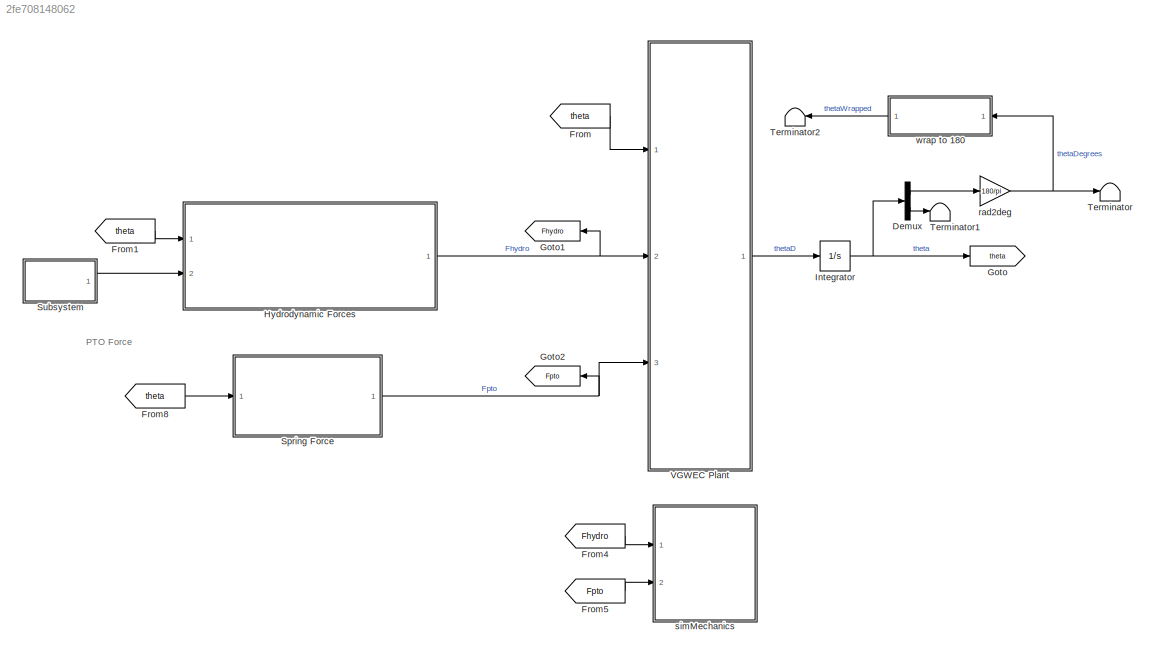
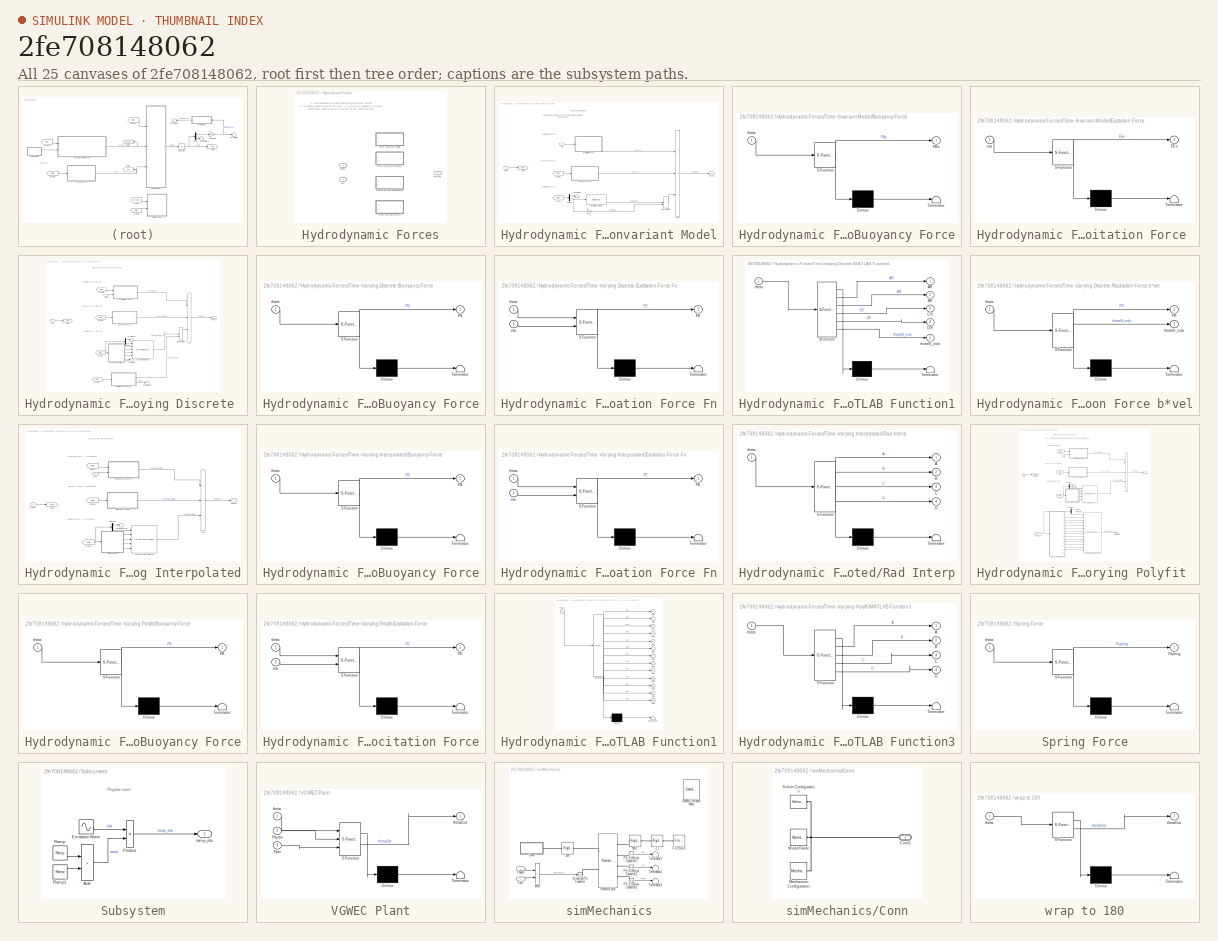
[diagram: thumbnail index - all 25 canvases of the model, root first then tree order]
MODEL slx_2fe708148062
KIND model
CONFIG AbsTol = auto
CONFIG EnableMultiTasking = off
CONFIG FixedStep = dt
CONFIG MaxStep = auto
CONFIG MinStep = auto
CONFIG RelTol = 1e-3
CONFIG SampleTimeConstraint = Unconstrained
CONFIG SolverName = ode3
CONFIG StartTime = 0.0
CONFIG StopTime = tSim
BLOCK [Demux] Demux
  Outputs = 2
  Ports = [1, 2]
BLOCK [From] From
  GotoTag = theta
BLOCK [From] From1
  GotoTag = theta
BLOCK [From] From4
  GotoTag = Fhydro
BLOCK [From] From5
  GotoTag = Fpto
BLOCK [From] From8
  GotoTag = theta
BLOCK [Goto] Goto
  GotoTag = theta
BLOCK [Goto] Goto1
  GotoTag = Fhydro
  NameLocation = top
BLOCK [Goto] Goto2
  GotoTag = Fpto
  NameLocation = top
BLOCK [SubSystem] Hydrodynamic Forces
  Ports = [2, 1]
  RequestExecContextInheritance = off
  Variant = on
BLOCK [Outport] Hydrodynamic Forces/FHydro
BLOCK [SubSystem] Hydrodynamic Forces/Time-Invariant Model
  Ports = [2, 1]
  RequestExecContextInheritance = off
  VariantControl = Time_Variant == 0
BLOCK [Sum] Hydrodynamic Forces/Time-Invariant Model/Add
  IconShape = rectangular
  Inputs = +--
  Ports = [3, 1]
BLOCK [SubSystem] Hydrodynamic Forces/Time-Invariant Model/Buoyancy Force
  ErrorFcn = Stateflow.Translate.translate
  PermitHierarchicalResolution = ExplicitOnly
  Ports = [1, 1]
  RequestExecContextInheritance = off
  SFBlockType = MATLAB Function
  TreatAsAtomicUnit = on
BLOCK [Demux] Hydrodynamic Forces/Time-Invariant Model/Buoyancy Force/ Demux 
  Outputs = 1
  Ports = [1, 1]
BLOCK [S-Function] Hydrodynamic Forces/Time-Invariant Model/Buoyancy Force/ SFunction 
  EnableBusSupport = on
  FunctionName = sf_sfun
  Parameters = hydroCoeff,hydroVCoeff
  PortCounts = [1 2]
  Ports = [1, 2]
  SFcnIsStateOwnerBlock = off
  SFunctionDeploymentMode = off
  Tag = Stateflow S-Function 11
BLOCK [Terminator] Hydrodynamic Forces/Time-Invariant Model/Buoyancy Force/ Terminator 
BLOCK [Outport] Hydrodynamic Forces/Time-Invariant Model/Buoyancy Force/FBs
BLOCK [Inport] Hydrodynamic Forces/Time-Invariant Model/Buoyancy Force/theta
BLOCK [Demux] Hydrodynamic Forces/Time-Invariant Model/Demux
  Outputs = 2
  Ports = [1, 2]
BLOCK [SubSystem] Hydrodynamic Forces/Time-Invariant Model/Excitation Force 
  ErrorFcn = Stateflow.Translate.translate
  PermitHierarchicalResolution = ExplicitOnly
  Ports = [1, 1]
  RequestExecContextInheritance = off
  SFBlockType = MATLAB Function
  TreatAsAtomicUnit = on
BLOCK [Demux] Hydrodynamic Forces/Time-Invariant Model/Excitation Force / Demux 
  Outputs = 1
  Ports = [1, 1]
BLOCK [S-Function] Hydrodynamic Forces/Time-Invariant Model/Excitation Force / SFunction 
  EnableBusSupport = on
  FunctionName = sf_sfun
  Parameters = hydroCoeff,hydroVCoeff,w_Wave
  PortCounts = [1 2]
  Ports = [1, 2]
  SFcnIsStateOwnerBlock = off
  SFunctionDeploymentMode = off
  Tag = Stateflow S-Function 17
BLOCK [Terminator] Hydrodynamic Forces/Time-Invariant Model/Excitation Force / Terminator 
BLOCK [Outport] Hydrodynamic Forces/Time-Invariant Model/Excitation Force /FEs
BLOCK [Inport] Hydrodynamic Forces/Time-Invariant Model/Excitation Force /eta
BLOCK [Outport] Hydrodynamic Forces/Time-Invariant Model/FHydro
BLOCK [From] Hydrodynamic Forces/Time-Invariant Model/From1
  GotoTag = theta
BLOCK [From] Hydrodynamic Forces/Time-Invariant Model/From6
  GotoTag = theta
BLOCK [Goto] Hydrodynamic Forces/Time-Invariant Model/Goto
  GotoTag = theta
BLOCK [ManualSwitch] Hydrodynamic Forces/Time-Invariant Model/Manual Switch
BLOCK [StateSpace] Hydrodynamic Forces/Time-Invariant Model/Rad State-Space
  A = AR3
  B = BR3
  C = CR3
  D = DR3
  InitialCondition = 0
  Ports = [1, 1]
BLOCK [Terminator] Hydrodynamic Forces/Time-Invariant Model/Terminator
BLOCK [Gain] Hydrodynamic Forces/Time-Invariant Model/b
  Gain = hydroVCoeff.KR(w_WaveIndx, hydroCoeff.singleThetaIndex)
BLOCK [Inport] Hydrodynamic Forces/Time-Invariant Model/eta
  Port = 2
BLOCK [Inport] Hydrodynamic Forces/Time-Invariant Model/theta
BLOCK [SubSystem] Hydrodynamic Forces/Time-Varying Discrete 
  Ports = [2, 1]
  RequestExecContextInheritance = off
  VariantControl = Time_Variant == 1
BLOCK [Sum] Hydrodynamic Forces/Time-Varying Discrete /Add
  IconShape = rectangular
  Inputs = +--
  Ports = [3, 1]
BLOCK [SubSystem] Hydrodynamic Forces/Time-Varying Discrete /Buoyancy Force
  ErrorFcn = Stateflow.Translate.translate
  PermitHierarchicalResolution = ExplicitOnly
  Ports = [1, 1]
  RequestExecContextInheritance = off
  SFBlockType = MATLAB Function
  TreatAsAtomicUnit = on
BLOCK [Demux] Hydrodynamic Forces/Time-Varying Discrete /Buoyancy Force/ Demux 
  Outputs = 1
  Ports = [1, 1]
BLOCK [S-Function] Hydrodynamic Forces/Time-Varying Discrete /Buoyancy Force/ SFunction 
  EnableBusSupport = on
  FunctionName = sf_sfun
  Parameters = hydroCoeff,hydroVCoeff
  PortCounts = [1 2]
  Ports = [1, 2]
  SFcnIsStateOwnerBlock = off
  SFunctionDeploymentMode = off
  Tag = Stateflow S-Function 10
BLOCK [Terminator] Hydrodynamic Forces/Time-Varying Discrete /Buoyancy Force/ Terminator 
BLOCK [Outport] Hydrodynamic Forces/Time-Varying Discrete /Buoyancy Force/FB
BLOCK [Inport] Hydrodynamic Forces/Time-Varying Discrete /Buoyancy Force/theta
BLOCK [Demux] Hydrodynamic Forces/Time-Varying Discrete /Demux1
  Outputs = 2
  Ports = [1, 2]
BLOCK [SubSystem] Hydrodynamic Forces/Time-Varying Discrete /Excitation Force Fn
  ErrorFcn = Stateflow.Translate.translate
  PermitHierarchicalResolution = ExplicitOnly
  Ports = [2, 1]
  RequestExecContextInheritance = off
  SFBlockType = MATLAB Function
  TreatAsAtomicUnit = on
BLOCK [Demux] Hydrodynamic Forces/Time-Varying Discrete /Excitation Force Fn/ Demux 
  Outputs = 1
  Ports = [1, 1]
BLOCK [S-Function] Hydrodynamic Forces/Time-Varying Discrete /Excitation Force Fn/ SFunction 
  EnableBusSupport = on
  FunctionName = sf_sfun
  Parameters = hydroCoeff,hydroVCoeff,w_Wave
  PortCounts = [2 2]
  Ports = [2, 2]
  SFcnIsStateOwnerBlock = off
  SFunctionDeploymentMode = off
  Tag = Stateflow S-Function 13
BLOCK [Terminator] Hydrodynamic Forces/Time-Varying Discrete /Excitation Force Fn/ Terminator 
BLOCK [Outport] Hydrodynamic Forces/Time-Varying Discrete /Excitation Force Fn/FE
BLOCK [Inport] Hydrodynamic Forces/Time-Varying Discrete /Excitation Force Fn/eta
  Port = 2
BLOCK [Inport] Hydrodynamic Forces/Time-Varying Discrete /Excitation Force Fn/theta
BLOCK [Outport] Hydrodynamic Forces/Time-Varying Discrete /FHydro
BLOCK [From] Hydrodynamic Forces/Time-Varying Discrete /From1
  GotoTag = theta
BLOCK [From] Hydrodynamic Forces/Time-Varying Discrete /From2
  GotoTag = theta
BLOCK [From] Hydrodynamic Forces/Time-Varying Discrete /From3
  GotoTag = theta
BLOCK [From] Hydrodynamic Forces/Time-Varying Discrete /From6
  GotoTag = theta
BLOCK [Goto] Hydrodynamic Forces/Time-Varying Discrete /Goto
  GotoTag = theta
BLOCK [SubSystem] Hydrodynamic Forces/Time-Varying Discrete /MATLAB Function1
  ErrorFcn = Stateflow.Translate.translate
  PermitHierarchicalResolution = ExplicitOnly
  Ports = [1, 5]
  RequestExecContextInheritance = off
  SFBlockType = MATLAB Function
  TreatAsAtomicUnit = on
BLOCK [Demux] Hydrodynamic Forces/Time-Varying Discrete /MATLAB Function1/ Demux 
  Outputs = 1
  Ports = [1, 1]
BLOCK [S-Function] Hydrodynamic Forces/Time-Varying Discrete /MATLAB Function1/ SFunction 
  EnableBusSupport = on
  FunctionName = sf_sfun
  Parameters = hydroCoeff,tfRadAR_ROm,tfRadBR_ROm,tfRadCR_ROm,tfRadDR_ROm
  PortCounts = [1 6]
  Ports = [1, 6]
  SFcnIsStateOwnerBlock = off
  SFunctionDeploymentMode = off
  Tag = Stateflow S-Function 14
BLOCK [Terminator] Hydrodynamic Forces/Time-Varying Discrete /MATLAB Function1/ Terminator 
BLOCK [Outport] Hydrodynamic Forces/Time-Varying Discrete /MATLAB Function1/AR
BLOCK [Outport] Hydrodynamic Forces/Time-Varying Discrete /MATLAB Function1/BR
  Port = 2
BLOCK [Outport] Hydrodynamic Forces/Time-Varying Discrete /MATLAB Function1/CR
  Port = 3
BLOCK [Outport] Hydrodynamic Forces/Time-Varying Discrete /MATLAB Function1/DR
  Port = 4
BLOCK [Inport] Hydrodynamic Forces/Time-Varying Discrete /MATLAB Function1/theta
BLOCK [Outport] Hydrodynamic Forces/Time-Varying Discrete /MATLAB Function1/thetaN_indx
  Port = 5
BLOCK [ManualSwitch] Hydrodynamic Forces/Time-Varying Discrete /Manual Switch
BLOCK [SubSystem] Hydrodynamic Forces/Time-Varying Discrete /Radiation Force b*vel
  ErrorFcn = Stateflow.Translate.translate
  PermitHierarchicalResolution = ExplicitOnly
  Ports = [1, 2]
  RequestExecContextInheritance = off
  SFBlockType = MATLAB Function
  TreatAsAtomicUnit = on
BLOCK [Demux] Hydrodynamic Forces/Time-Varying Discrete /Radiation Force b*vel/ Demux 
  Outputs = 1
  Ports = [1, 1]
BLOCK [S-Function] Hydrodynamic Forces/Time-Varying Discrete /Radiation Force b*vel/ SFunction 
  EnableBusSupport = on
  FunctionName = sf_sfun
  Parameters = hydroCoeff,hydroVCoeff,w_WaveIndx
  PortCounts = [1 3]
  Ports = [1, 3]
  SFcnIsStateOwnerBlock = off
  SFunctionDeploymentMode = off
  Tag = Stateflow S-Function 16
BLOCK [Terminator] Hydrodynamic Forces/Time-Varying Discrete /Radiation Force b*vel/ Terminator 
BLOCK [Outport] Hydrodynamic Forces/Time-Varying Discrete /Radiation Force b*vel/FR
BLOCK [Inport] Hydrodynamic Forces/Time-Varying Discrete /Radiation Force b*vel/theta
BLOCK [Outport] Hydrodynamic Forces/Time-Varying Discrete /Radiation Force b*vel/thetaN_indx
  Port = 2
BLOCK [Terminator] Hydrodynamic Forces/Time-Varying Discrete /Terminator1
BLOCK [Terminator] Hydrodynamic Forces/Time-Varying Discrete /Terminator2
BLOCK [Terminator] Hydrodynamic Forces/Time-Varying Discrete /Terminator3
BLOCK [Reference] Hydrodynamic Forces/Time-Varying Discrete /Varying State Space  REF=cstblocks/Linear Parameter Varying/Varying State Space
  Ports = [5, 1]
  SourceBlock = cstblocks/Linear Parameter Varying/Varying State Space
  SourceProductBaseCode = CT
  SourceType = Varying State Space
BLOCK [Inport] Hydrodynamic Forces/Time-Varying Discrete /eta
  Port = 2
BLOCK [Inport] Hydrodynamic Forces/Time-Varying Discrete /theta
BLOCK [SubSystem] Hydrodynamic Forces/Time-Varying Interpolated
  Ports = [2, 1]
  RequestExecContextInheritance = off
  VariantControl = Time_Variant == 2
BLOCK [Sum] Hydrodynamic Forces/Time-Varying Interpolated/Add
  IconShape = rectangular
  Inputs = +--
  Ports = [3, 1]
BLOCK [SubSystem] Hydrodynamic Forces/Time-Varying Interpolated/Buoyancy Force
  ErrorFcn = Stateflow.Translate.translate
  PermitHierarchicalResolution = ExplicitOnly
  Ports = [1, 1]
  RequestExecContextInheritance = off
  SFBlockType = MATLAB Function
  TreatAsAtomicUnit = on
BLOCK [Demux] Hydrodynamic Forces/Time-Varying Interpolated/Buoyancy Force/ Demux 
  Outputs = 1
  Ports = [1, 1]
BLOCK [S-Function] Hydrodynamic Forces/Time-Varying Interpolated/Buoyancy Force/ SFunction 
  EnableBusSupport = on
  FunctionName = sf_sfun
  Parameters = hydroCoeff,hydroVCoeff
  PortCounts = [1 2]
  Ports = [1, 2]
  SFcnIsStateOwnerBlock = off
  SFunctionDeploymentMode = off
  Tag = Stateflow S-Function 4
BLOCK [Terminator] Hydrodynamic Forces/Time-Varying Interpolated/Buoyancy Force/ Terminator 
BLOCK [Outport] Hydrodynamic Forces/Time-Varying Interpolated/Buoyancy Force/FB
BLOCK [Inport] Hydrodynamic Forces/Time-Varying Interpolated/Buoyancy Force/theta
BLOCK [Demux] Hydrodynamic Forces/Time-Varying Interpolated/Demux4
  Outputs = 2
  Ports = [1, 2]
BLOCK [SubSystem] Hydrodynamic Forces/Time-Varying Interpolated/Excitation Force Fn
  ErrorFcn = Stateflow.Translate.translate
  PermitHierarchicalResolution = ExplicitOnly
  Ports = [2, 1]
  RequestExecContextInheritance = off
  SFBlockType = MATLAB Function
  TreatAsAtomicUnit = on
BLOCK [Demux] Hydrodynamic Forces/Time-Varying Interpolated/Excitation Force Fn/ Demux 
  Outputs = 1
  Ports = [1, 1]
BLOCK [S-Function] Hydrodynamic Forces/Time-Varying Interpolated/Excitation Force Fn/ SFunction 
  EnableBusSupport = on
  FunctionName = sf_sfun
  Parameters = hydroCoeff,hydroVCoeff,w_Wave
  PortCounts = [2 2]
  Ports = [2, 2]
  SFcnIsStateOwnerBlock = off
  SFunctionDeploymentMode = off
  Tag = Stateflow S-Function 5
BLOCK [Terminator] Hydrodynamic Forces/Time-Varying Interpolated/Excitation Force Fn/ Terminator 
BLOCK [Outport] Hydrodynamic Forces/Time-Varying Interpolated/Excitation Force Fn/FE
BLOCK [Inport] Hydrodynamic Forces/Time-Varying Interpolated/Excitation Force Fn/eta
  Port = 2
BLOCK [Inport] Hydrodynamic Forces/Time-Varying Interpolated/Excitation Force Fn/theta
BLOCK [Outport] Hydrodynamic Forces/Time-Varying Interpolated/FHydro
BLOCK [From] Hydrodynamic Forces/Time-Varying Interpolated/From1
  GotoTag = theta
BLOCK [From] Hydrodynamic Forces/Time-Varying Interpolated/From2
  GotoTag = theta
BLOCK [From] Hydrodynamic Forces/Time-Varying Interpolated/From6
  GotoTag = theta
BLOCK [Goto] Hydrodynamic Forces/Time-Varying Interpolated/Goto
  GotoTag = theta
BLOCK [SubSystem] Hydrodynamic Forces/Time-Varying Interpolated/Rad Interp
  ErrorFcn = Stateflow.Translate.translate
  PermitHierarchicalResolution = ExplicitOnly
  Ports = [1, 4]
  RequestExecContextInheritance = off
  SFBlockType = MATLAB Function
  TreatAsAtomicUnit = on
BLOCK [Demux] Hydrodynamic Forces/Time-Varying Interpolated/Rad Interp/ Demux 
  Outputs = 1
  Ports = [1, 1]
BLOCK [S-Function] Hydrodynamic Forces/Time-Varying Interpolated/Rad Interp/ SFunction 
  EnableBusSupport = on
  FunctionName = sf_sfun
  Parameters = aRInterp,bRInterp,hydroCoeff
  PortCounts = [1 5]
  Ports = [1, 5]
  SFcnIsStateOwnerBlock = off
  SFunctionDeploymentMode = off
  Tag = Stateflow S-Function 6
BLOCK [Terminator] Hydrodynamic Forces/Time-Varying Interpolated/Rad Interp/ Terminator 
BLOCK [Outport] Hydrodynamic Forces/Time-Varying Interpolated/Rad Interp/A
BLOCK [Outport] Hydrodynamic Forces/Time-Varying Interpolated/Rad Interp/B
  Port = 2
BLOCK [Outport] Hydrodynamic Forces/Time-Varying Interpolated/Rad Interp/C
  Port = 3
BLOCK [Outport] Hydrodynamic Forces/Time-Varying Interpolated/Rad Interp/D
  Port = 4
BLOCK [Inport] Hydrodynamic Forces/Time-Varying Interpolated/Rad Interp/theta
BLOCK [Terminator] Hydrodynamic Forces/Time-Varying Interpolated/Terminator8
BLOCK [Reference] Hydrodynamic Forces/Time-Varying Interpolated/Varying State Space2  REF=cstblocks/Linear Parameter Varying/Varying State Space
  Ports = [5, 1]
  SourceBlock = cstblocks/Linear Parameter Varying/Varying State Space
  SourceProductBaseCode = CT
  SourceType = Varying State Space
BLOCK [Inport] Hydrodynamic Forces/Time-Varying Interpolated/eta
  Port = 2
BLOCK [Inport] Hydrodynamic Forces/Time-Varying Interpolated/theta
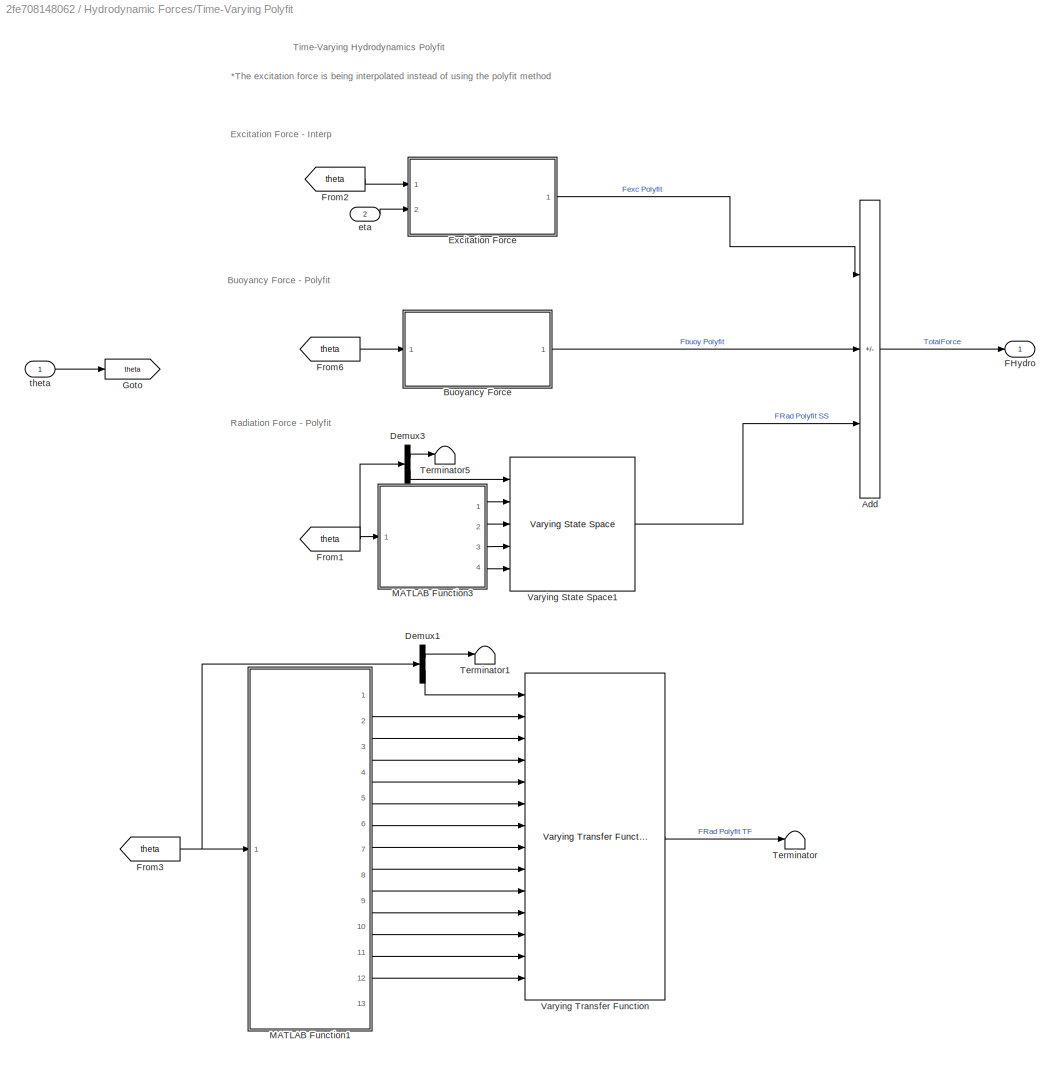
BLOCK [SubSystem] Hydrodynamic Forces/Time-Varying Polyfit 
  Ports = [2, 1]
  RequestExecContextInheritance = off
  VariantControl = Time_Variant == 3
BLOCK [Sum] Hydrodynamic Forces/Time-Varying Polyfit /Add
  IconShape = rectangular
  Inputs = +--
  Ports = [3, 1]
BLOCK [SubSystem] Hydrodynamic Forces/Time-Varying Polyfit /Buoyancy Force
  ErrorFcn = Stateflow.Translate.translate
  PermitHierarchicalResolution = ExplicitOnly
  Ports = [1, 1]
  RequestExecContextInheritance = off
  SFBlockType = MATLAB Function
  TreatAsAtomicUnit = on
BLOCK [Demux] Hydrodynamic Forces/Time-Varying Polyfit /Buoyancy Force/ Demux 
  Outputs = 1
  Ports = [1, 1]
BLOCK [S-Function] Hydrodynamic Forces/Time-Varying Polyfit /Buoyancy Force/ SFunction 
  EnableBusSupport = on
  FunctionName = sf_sfun
  Parameters = hydroVCoeff
  PortCounts = [1 2]
  Ports = [1, 2]
  SFcnIsStateOwnerBlock = off
  SFunctionDeploymentMode = off
  Tag = Stateflow S-Function 8
BLOCK [Terminator] Hydrodynamic Forces/Time-Varying Polyfit /Buoyancy Force/ Terminator 
BLOCK [Outport] Hydrodynamic Forces/Time-Varying Polyfit /Buoyancy Force/FB
BLOCK [Inport] Hydrodynamic Forces/Time-Varying Polyfit /Buoyancy Force/theta
BLOCK [Demux] Hydrodynamic Forces/Time-Varying Polyfit /Demux1
  Commented = on
  Outputs = 2
  Ports = [1, 2]
BLOCK [Demux] Hydrodynamic Forces/Time-Varying Polyfit /Demux3
  Outputs = 2
  Ports = [1, 2]
BLOCK [SubSystem] Hydrodynamic Forces/Time-Varying Polyfit /Excitation Force
  ErrorFcn = Stateflow.Translate.translate
  PermitHierarchicalResolution = ExplicitOnly
  Ports = [2, 1]
  RequestExecContextInheritance = off
  SFBlockType = MATLAB Function
  TreatAsAtomicUnit = on
BLOCK [Demux] Hydrodynamic Forces/Time-Varying Polyfit /Excitation Force/ Demux 
  Outputs = 1
  Ports = [1, 1]
BLOCK [S-Function] Hydrodynamic Forces/Time-Varying Polyfit /Excitation Force/ SFunction 
  EnableBusSupport = on
  FunctionName = sf_sfun
  Parameters = hydroCoeff,hydroVCoeff,w_Wave
  PortCounts = [2 2]
  Ports = [2, 2]
  SFcnIsStateOwnerBlock = off
  SFunctionDeploymentMode = off
  Tag = Stateflow S-Function 9
BLOCK [Terminator] Hydrodynamic Forces/Time-Varying Polyfit /Excitation Force/ Terminator 
BLOCK [Outport] Hydrodynamic Forces/Time-Varying Polyfit /Excitation Force/FE
BLOCK [Inport] Hydrodynamic Forces/Time-Varying Polyfit /Excitation Force/eta
  Port = 2
BLOCK [Inport] Hydrodynamic Forces/Time-Varying Polyfit /Excitation Force/theta
BLOCK [Outport] Hydrodynamic Forces/Time-Varying Polyfit /FHydro
BLOCK [From] Hydrodynamic Forces/Time-Varying Polyfit /From1
  GotoTag = theta
BLOCK [From] Hydrodynamic Forces/Time-Varying Polyfit /From2
  GotoTag = theta
BLOCK [From] Hydrodynamic Forces/Time-Varying Polyfit /From3
  Commented = on
  GotoTag = theta
BLOCK [From] Hydrodynamic Forces/Time-Varying Polyfit /From6
  GotoTag = theta
BLOCK [Goto] Hydrodynamic Forces/Time-Varying Polyfit /Goto
  GotoTag = theta
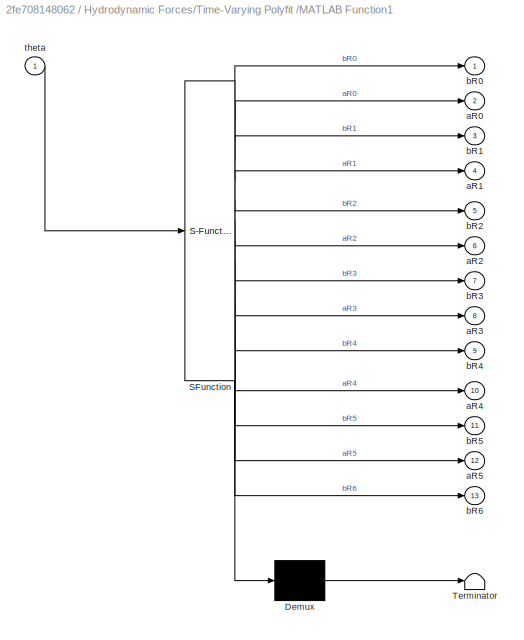
BLOCK [SubSystem] Hydrodynamic Forces/Time-Varying Polyfit /MATLAB Function1
  Commented = on
  ErrorFcn = Stateflow.Translate.translate
  PermitHierarchicalResolution = ExplicitOnly
  Ports = [1, 13]
  RequestExecContextInheritance = off
  SFBlockType = MATLAB Function
  TreatAsAtomicUnit = on
BLOCK [Demux] Hydrodynamic Forces/Time-Varying Polyfit /MATLAB Function1/ Demux 
  Outputs = 1
  Ports = [1, 1]
BLOCK [S-Function] Hydrodynamic Forces/Time-Varying Polyfit /MATLAB Function1/ SFunction 
  EnableBusSupport = on
  FunctionName = sf_sfun
  Parameters = hydroVCoeff
  PortCounts = [1 14]
  Ports = [1, 14]
  SFcnIsStateOwnerBlock = off
  SFunctionDeploymentMode = off
  Tag = Stateflow S-Function 3
BLOCK [Terminator] Hydrodynamic Forces/Time-Varying Polyfit /MATLAB Function1/ Terminator 
BLOCK [Outport] Hydrodynamic Forces/Time-Varying Polyfit /MATLAB Function1/aR0
  Port = 2
BLOCK [Outport] Hydrodynamic Forces/Time-Varying Polyfit /MATLAB Function1/aR1
  Port = 4
BLOCK [Outport] Hydrodynamic Forces/Time-Varying Polyfit /MATLAB Function1/aR2
  Port = 6
BLOCK [Outport] Hydrodynamic Forces/Time-Varying Polyfit /MATLAB Function1/aR3
  Port = 8
BLOCK [Outport] Hydrodynamic Forces/Time-Varying Polyfit /MATLAB Function1/aR4
  Port = 10
BLOCK [Outport] Hydrodynamic Forces/Time-Varying Polyfit /MATLAB Function1/aR5
  Port = 12
BLOCK [Outport] Hydrodynamic Forces/Time-Varying Polyfit /MATLAB Function1/bR0
BLOCK [Outport] Hydrodynamic Forces/Time-Varying Polyfit /MATLAB Function1/bR1
  Port = 3
BLOCK [Outport] Hydrodynamic Forces/Time-Varying Polyfit /MATLAB Function1/bR2
  Port = 5
BLOCK [Outport] Hydrodynamic Forces/Time-Varying Polyfit /MATLAB Function1/bR3
  Port = 7
BLOCK [Outport] Hydrodynamic Forces/Time-Varying Polyfit /MATLAB Function1/bR4
  Port = 9
BLOCK [Outport] Hydrodynamic Forces/Time-Varying Polyfit /MATLAB Function1/bR5
  Port = 11
BLOCK [Outport] Hydrodynamic Forces/Time-Varying Polyfit /MATLAB Function1/bR6
  Port = 13
BLOCK [Inport] Hydrodynamic Forces/Time-Varying Polyfit /MATLAB Function1/theta
BLOCK [SubSystem] Hydrodynamic Forces/Time-Varying Polyfit /MATLAB Function3
  ErrorFcn = Stateflow.Translate.translate
  PermitHierarchicalResolution = ExplicitOnly
  Ports = [1, 4]
  RequestExecContextInheritance = off
  SFBlockType = MATLAB Function
  TreatAsAtomicUnit = on
BLOCK [Demux] Hydrodynamic Forces/Time-Varying Polyfit /MATLAB Function3/ Demux 
  Outputs = 1
  Ports = [1, 1]
BLOCK [S-Function] Hydrodynamic Forces/Time-Varying Polyfit /MATLAB Function3/ SFunction 
  EnableBusSupport = on
  FunctionName = sf_sfun
  Parameters = hydroVCoeff
  PortCounts = [1 5]
  Ports = [1, 5]
  SFcnIsStateOwnerBlock = off
  SFunctionDeploymentMode = off
  Tag = Stateflow S-Function 7
BLOCK [Terminator] Hydrodynamic Forces/Time-Varying Polyfit /MATLAB Function3/ Terminator 
BLOCK [Outport] Hydrodynamic Forces/Time-Varying Polyfit /MATLAB Function3/A
BLOCK [Outport] Hydrodynamic Forces/Time-Varying Polyfit /MATLAB Function3/B
  Port = 2
BLOCK [Outport] Hydrodynamic Forces/Time-Varying Polyfit /MATLAB Function3/C
  Port = 3
BLOCK [Outport] Hydrodynamic Forces/Time-Varying Polyfit /MATLAB Function3/D
  Port = 4
BLOCK [Inport] Hydrodynamic Forces/Time-Varying Polyfit /MATLAB Function3/theta
BLOCK [Terminator] Hydrodynamic Forces/Time-Varying Polyfit /Terminator
  Commented = on
BLOCK [Terminator] Hydrodynamic Forces/Time-Varying Polyfit /Terminator1
  Commented = on
BLOCK [Terminator] Hydrodynamic Forces/Time-Varying Polyfit /Terminator5
BLOCK [Reference] Hydrodynamic Forces/Time-Varying Polyfit /Varying State Space1  REF=cstblocks/Linear Parameter Varying/Varying State Space
  Ports = [5, 1]
  SourceBlock = cstblocks/Linear Parameter Varying/Varying State Space
  SourceProductBaseCode = CT
  SourceType = Varying State Space
BLOCK [Reference] Hydrodynamic Forces/Time-Varying Polyfit /Varying Transfer Function  REF=cstblocks/Linear Parameter Varying/Varying Transfer Function
  Commented = on
  Ports = [14, 1]
  SourceBlock = cstblocks/Linear Parameter Varying/Varying Transfer Function
  SourceProductBaseCode = CT
  SourceType = Varying Transfer Function
BLOCK [Inport] Hydrodynamic Forces/Time-Varying Polyfit /eta
  Port = 2
BLOCK [Inport] Hydrodynamic Forces/Time-Varying Polyfit /theta
BLOCK [Inport] Hydrodynamic Forces/eta
  Port = 2
BLOCK [Inport] Hydrodynamic Forces/theta
BLOCK [Integrator] Integrator
  InitialCondition = theta0
  Ports = [1, 1]
BLOCK [SubSystem] Spring Force
  ErrorFcn = Stateflow.Translate.translate
  PermitHierarchicalResolution = ExplicitOnly
  Ports = [1, 1]
  RequestExecContextInheritance = off
  SFBlockType = MATLAB Function
  TreatAsAtomicUnit = on
BLOCK [Demux] Spring Force/ Demux 
  Outputs = 1
  Ports = [1, 1]
BLOCK [S-Function] Spring Force/ SFunction 
  EnableBusSupport = on
  FunctionName = sf_sfun
  Parameters = hydroCoeff
  PortCounts = [1 2]
  Ports = [1, 2]
  SFcnIsStateOwnerBlock = off
  SFunctionDeploymentMode = off
  Tag = Stateflow S-Function 15
BLOCK [Terminator] Spring Force/ Terminator 
BLOCK [Outport] Spring Force/Fspring
BLOCK [Inport] Spring Force/theta
BLOCK [SubSystem] Subsystem
  Ports = [0, 1]
  RequestExecContextInheritance = off
BLOCK [Sum] Subsystem/Add
  IconShape = rectangular
  Ports = [2, 1]
BLOCK [Sin] Subsystem/Excitation Wave
  Amplitude = amp_Wave
  Frequency = w_Wave
  Ports = [0, 1]
  SampleTime = 0
BLOCK [Product] Subsystem/Product
  Ports = [2, 1]
BLOCK [Reference] Subsystem/Ramp  REF=simulink/Sources/Ramp
  Ports = [0, 1]
  SourceBlock = simulink/Sources/Ramp
  SourceProductBaseCode = SL
  SourceType = Ramp
BLOCK [Reference] Subsystem/Ramp1  REF=simulink/Sources/Ramp
  Ports = [0, 1]
  SourceBlock = simulink/Sources/Ramp
  SourceProductBaseCode = SL
  SourceType = Ramp
BLOCK [Outport] Subsystem/ramp_eta
BLOCK [Terminator] Terminator
BLOCK [Terminator] Terminator1
BLOCK [Terminator] Terminator2
  Commented = on
  NameLocation = top
BLOCK [SubSystem] VGWEC Plant
  ErrorFcn = Stateflow.Translate.translate
  PermitHierarchicalResolution = ExplicitOnly
  Ports = [3, 1]
  RequestExecContextInheritance = off
  SFBlockType = MATLAB Function
  TreatAsAtomicUnit = on
BLOCK [Demux] VGWEC Plant/ Demux 
  Outputs = 1
  Ports = [1, 1]
BLOCK [S-Function] VGWEC Plant/ SFunction 
  EnableBusSupport = on
  FunctionName = sf_sfun
  Parameters = Time_Variant,hydroCoeff,hydroVCoeff
  PortCounts = [3 2]
  Ports = [3, 2]
  SFcnIsStateOwnerBlock = off
  SFunctionDeploymentMode = off
  Tag = Stateflow S-Function 2
BLOCK [Terminator] VGWEC Plant/ Terminator 
BLOCK [Inport] VGWEC Plant/Fhydro
  Port = 2
BLOCK [Inport] VGWEC Plant/Fpto
  Port = 3
BLOCK [Inport] VGWEC Plant/theta
BLOCK [Outport] VGWEC Plant/thetaDot
BLOCK [Gain] rad2deg
  Gain = 180/pi
BLOCK [SubSystem] simMechanics
  Ports = [2]
  RequestExecContextInheritance = off
BLOCK [Reference] simMechanics/-Z1  REF=sm_lib/Frames and
Transforms/Rigid
Transform
  Ports = [0, 0, 0, 0, 0, 1, 1]
  SourceBlock = sm_lib/Frames and\nTransforms/Rigid\nTransform
  SourceProductBaseCode = MS
  SourceType = Rigid\nTransform
BLOCK [Reference] simMechanics/90X  REF=sm_lib/Frames and
Transforms/Rigid
Transform
  Ports = [0, 0, 0, 0, 0, 1, 1]
  SourceBlock = sm_lib/Frames and\nTransforms/Rigid\nTransform
  SourceProductBaseCode = MS
  SourceType = Rigid\nTransform
BLOCK [Reference] simMechanics/90X1  REF=sm_lib/Frames and
Transforms/Rigid
Transform
  Ports = [0, 0, 0, 0, 0, 1, 1]
  SourceBlock = sm_lib/Frames and\nTransforms/Rigid\nTransform
  SourceProductBaseCode = MS
  SourceType = Rigid\nTransform
BLOCK [Sum] simMechanics/Add
  IconShape = rectangular
  Inputs = +-
  Ports = [2, 1]
BLOCK [SubSystem] simMechanics/Conn
  Ports = [0, 0, 0, 0, 0, 0, 1]
  RequestExecContextInheritance = off
BLOCK [PMIOPort] simMechanics/Conn/Conn1
  Side = Right
BLOCK [Reference] simMechanics/Conn/Mechanism Configuration  REF=sm_lib/Utilities/Mechanism
Configuration
  Ports = [0, 0, 0, 0, 0, 0, 1]
  SourceBlock = sm_lib/Utilities/Mechanism\nConfiguration
  SourceProductBaseCode = MS
  SourceType = Mechanism\nConfiguration
BLOCK [Reference] simMechanics/Conn/Solver Configuration  REF=nesl_utility/Solver
Configuration
  Ports = [0, 0, 0, 0, 0, 0, 1]
  SourceBlock = nesl_utility/Solver\nConfiguration
  SourceProductBaseCode = SS,PW,VE
  SourceType = Solver\nConfiguration
BLOCK [Reference] simMechanics/Conn/World Frame  REF=sm_lib/Frames and
Transforms/World Frame
  Ports = [0, 0, 0, 0, 0, 0, 1]
  SourceBlock = sm_lib/Frames and\nTransforms/World Frame
  SourceProductBaseCode = MS
  SourceType = World Frame
BLOCK [Inport] simMechanics/Fhydro
BLOCK [Reference] simMechanics/File Solid  REF=sm_lib/Body Elements/File Solid
  NameLocation = top
  Ports = [0, 0, 0, 0, 0, 0, 1]
  SourceBlock = sm_lib/Body Elements/File Solid
  SourceProductBaseCode = MS
  SourceType = File Solid
BLOCK [Inport] simMechanics/Fpto
  Port = 2
BLOCK [Reference] simMechanics/General Variable Mass  REF=sm_lib/Body Elements/Variable Mass/General
Variable Mass
  Commented = on
  Ports = [0, 0, 0, 0, 0, 1, 1]
  SourceBlock = sm_lib/Body Elements/Variable Mass/General\nVariable Mass
  SourceProductBaseCode = MS
  SourceType = General\nVariable Mass
BLOCK [Reference] simMechanics/PS-Simulink Converter1  REF=nesl_utility/PS-Simulink
Converter
  Ports = [0, 1, 0, 0, 0, 1]
  SourceBlock = nesl_utility/PS-Simulink\nConverter
  SourceProductBaseCode = SS,PW,VE
  SourceType = PS-Simulink\nConverter
BLOCK [Reference] simMechanics/PS-Simulink Converter2  REF=nesl_utility/PS-Simulink
Converter
  Ports = [0, 1, 0, 0, 0, 1]
  SourceBlock = nesl_utility/PS-Simulink\nConverter
  SourceProductBaseCode = SS,PW,VE
  SourceType = PS-Simulink\nConverter
BLOCK [Reference] simMechanics/PS-Simulink Converter3  REF=nesl_utility/PS-Simulink
Converter
  Ports = [0, 1, 0, 0, 0, 1]
  SourceBlock = nesl_utility/PS-Simulink\nConverter
  SourceProductBaseCode = SS,PW,VE
  SourceType = PS-Simulink\nConverter
BLOCK [Reference] simMechanics/Revolute Joint  REF=sm_lib/Joints/Revolute Joint
  Ports = [0, 0, 0, 0, 0, 2, 4]
  SourceBlock = sm_lib/Joints/Revolute Joint
  SourceProductBaseCode = MS
  SourceType = Revolute Joint
BLOCK [Reference] simMechanics/Simulink-PS Converter  REF=nesl_utility/Simulink-PS
Converter
  Ports = [1, 0, 0, 0, 0, 0, 1]
  SourceBlock = nesl_utility/Simulink-PS\nConverter
  SourceProductBaseCode = SS,PW,VE
  SourceType = Simulink-PS\nConverter
BLOCK [Terminator] simMechanics/Terminator1
BLOCK [Terminator] simMechanics/Terminator2
BLOCK [Terminator] simMechanics/Terminator3
BLOCK [SubSystem] wrap to 180
  Commented = on
  ErrorFcn = Stateflow.Translate.translate
  NameLocation = top
  PermitHierarchicalResolution = ExplicitOnly
  Ports = [1, 1]
  RequestExecContextInheritance = off
  SFBlockType = MATLAB Function
  TreatAsAtomicUnit = on
BLOCK [Demux] wrap to 180/ Demux 
  Outputs = 1
  Ports = [1, 1]
BLOCK [S-Function] wrap to 180/ SFunction 
  EnableBusSupport = on
  FunctionName = sf_sfun
  PortCounts = [1 2]
  Ports = [1, 2]
  SFcnIsStateOwnerBlock = off
  SFunctionDeploymentMode = off
  Tag = Stateflow S-Function 1
BLOCK [Terminator] wrap to 180/ Terminator 
BLOCK [Inport] wrap to 180/theta
BLOCK [Outport] wrap to 180/thetaOut
ANNOTATION (root): PTO Force
ANNOTATION Hydrodynamic Forces: 1) Add Subsystem or Model blocks as valid variant choices. 2) You cannot connect blocks at this level. At simulation, connectivity is automatically determined, based on the active variant and port name matching.
ANNOTATION Hydrodynamic Forces/Time-Invariant Model: Time-Invariante Model
ANNOTATION Hydrodynamic Forces/Time-Invariant Model: This model assumes the hydrodynamics of a fully closed flap at $\zeta = 0^\circ$
ANNOTATION Hydrodynamic Forces/Time-Invariant Model: Buoyancy Force LTI
ANNOTATION Hydrodynamic Forces/Time-Invariant Model: Excitation Force LTI
ANNOTATION Hydrodynamic Forces/Time-Invariant Model: Radiation Force LTI
ANNOTATION Hydrodynamic Forces/Time-Varying Discrete : Time-Varying Hydrodynamics - Discrete
ANNOTATION Hydrodynamic Forces/Time-Varying Discrete : Buoyancy Force - Discrete
ANNOTATION Hydrodynamic Forces/Time-Varying Discrete : Excitation Force - Discrete
ANNOTATION Hydrodynamic Forces/Time-Varying Discrete : Radiation Force - Discrete
ANNOTATION Hydrodynamic Forces/Time-Varying Interpolated: Time-Varying Hydrodynamics
ANNOTATION Hydrodynamic Forces/Time-Varying Interpolated: Buoyancy Force - Interpolated
ANNOTATION Hydrodynamic Forces/Time-Varying Interpolated: Excitation Force - Interpolated
ANNOTATION Hydrodynamic Forces/Time-Varying Interpolated: Radiation Force - Interpolated
ANNOTATION Hydrodynamic Forces/Time-Varying Polyfit : *The excitation force is being interpolated instead of using the polyfit method
ANNOTATION Hydrodynamic Forces/Time-Varying Polyfit : Time-Varying Hydrodynamics Polyfit
ANNOTATION Hydrodynamic Forces/Time-Varying Polyfit : Buoyancy Force - Polyfit
ANNOTATION Hydrodynamic Forces/Time-Varying Polyfit : Excitation Force - Interp
ANNOTATION Hydrodynamic Forces/Time-Varying Polyfit : Radiation Force - Polyfit
ANNOTATION Subsystem: Regular wave
LINE Demux:1 -> rad2deg:1
LINE Demux:2 -> Terminator1:1
LINE From1:1 -> Hydrodynamic Forces:1
LINE From4:1 -> simMechanics:1
LINE From5:1 -> simMechanics:2
LINE From8:1 -> Spring Force:1
LINE From:1 -> VGWEC Plant:1
LINE Hydrodynamic Forces/Time-Invariant Model/Add:1 -> Hydrodynamic Forces/Time-Invariant Model/FHydro:1
LINE Hydrodynamic Forces/Time-Invariant Model/Buoyancy Force:1 -> Hydrodynamic Forces/Time-Invariant Model/Add:2
LINE Hydrodynamic Forces/Time-Invariant Model/Demux:1 -> Hydrodynamic Forces/Time-Invariant Model/Terminator:1
NET Hydrodynamic Forces/Time-Invariant Model/Demux:2 -> Hydrodynamic Forces/Time-Invariant Model/Rad State-Space:1, Hydrodynamic Forces/Time-Invariant Model/b:1
LINE Hydrodynamic Forces/Time-Invariant Model/Excitation Force :1 -> Hydrodynamic Forces/Time-Invariant Model/Add:1
LINE Hydrodynamic Forces/Time-Invariant Model/From1:1 -> Hydrodynamic Forces/Time-Invariant Model/Demux:1
LINE Hydrodynamic Forces/Time-Invariant Model/From6:1 -> Hydrodynamic Forces/Time-Invariant Model/Buoyancy Force:1
LINE Hydrodynamic Forces/Time-Invariant Model/Manual Switch:1 -> Hydrodynamic Forces/Time-Invariant Model/Add:3
LINE Hydrodynamic Forces/Time-Invariant Model/Rad State-Space:1 -> Hydrodynamic Forces/Time-Invariant Model/Manual Switch:1
LINE Hydrodynamic Forces/Time-Invariant Model/b:1 -> Hydrodynamic Forces/Time-Invariant Model/Manual Switch:2
LINE Hydrodynamic Forces/Time-Invariant Model/eta:1 -> Hydrodynamic Forces/Time-Invariant Model/Excitation Force :1
LINE Hydrodynamic Forces/Time-Invariant Model/theta:1 -> Hydrodynamic Forces/Time-Invariant Model/Goto:1
LINE Hydrodynamic Forces/Time-Varying Discrete /Add:1 -> Hydrodynamic Forces/Time-Varying Discrete /FHydro:1
LINE Hydrodynamic Forces/Time-Varying Discrete /Buoyancy Force:1 -> Hydrodynamic Forces/Time-Varying Discrete /Add:2
LINE Hydrodynamic Forces/Time-Varying Discrete /Demux1:1 -> Hydrodynamic Forces/Time-Varying Discrete /Terminator2:1
LINE Hydrodynamic Forces/Time-Varying Discrete /Demux1:2 -> Hydrodynamic Forces/Time-Varying Discrete /Varying State Space:1
LINE Hydrodynamic Forces/Time-Varying Discrete /Excitation Force Fn:1 -> Hydrodynamic Forces/Time-Varying Discrete /Add:1
NET Hydrodynamic Forces/Time-Varying Discrete /From1:1 -> Hydrodynamic Forces/Time-Varying Discrete /Demux1:1, Hydrodynamic Forces/Time-Varying Discrete /MATLAB Function1:1
LINE Hydrodynamic Forces/Time-Varying Discrete /From2:1 -> Hydrodynamic Forces/Time-Varying Discrete /Excitation Force Fn:1
LINE Hydrodynamic Forces/Time-Varying Discrete /From3:1 -> Hydrodynamic Forces/Time-Varying Discrete /Radiation Force b*vel:1
LINE Hydrodynamic Forces/Time-Varying Discrete /From6:1 -> Hydrodynamic Forces/Time-Varying Discrete /Buoyancy Force:1
LINE Hydrodynamic Forces/Time-Varying Discrete /MATLAB Function1:1 -> Hydrodynamic Forces/Time-Varying Discrete /Varying State Space:2
LINE Hydrodynamic Forces/Time-Varying Discrete /MATLAB Function1:2 -> Hydrodynamic Forces/Time-Varying Discrete /Varying State Space:3
LINE Hydrodynamic Forces/Time-Varying Discrete /MATLAB Function1:3 -> Hydrodynamic Forces/Time-Varying Discrete /Varying State Space:4
LINE Hydrodynamic Forces/Time-Varying Discrete /MATLAB Function1:4 -> Hydrodynamic Forces/Time-Varying Discrete /Varying State Space:5
LINE Hydrodynamic Forces/Time-Varying Discrete /MATLAB Function1:5 -> Hydrodynamic Forces/Time-Varying Discrete /Terminator3:1
LINE Hydrodynamic Forces/Time-Varying Discrete /Manual Switch:1 -> Hydrodynamic Forces/Time-Varying Discrete /Add:3
LINE Hydrodynamic Forces/Time-Varying Discrete /Radiation Force b*vel:1 -> Hydrodynamic Forces/Time-Varying Discrete /Manual Switch:2
LINE Hydrodynamic Forces/Time-Varying Discrete /Radiation Force b*vel:2 -> Hydrodynamic Forces/Time-Varying Discrete /Terminator1:1
LINE Hydrodynamic Forces/Time-Varying Discrete /Varying State Space:1 -> Hydrodynamic Forces/Time-Varying Discrete /Manual Switch:1
LINE Hydrodynamic Forces/Time-Varying Discrete /eta:1 -> Hydrodynamic Forces/Time-Varying Discrete /Excitation Force Fn:2
LINE Hydrodynamic Forces/Time-Varying Discrete /theta:1 -> Hydrodynamic Forces/Time-Varying Discrete /Goto:1
LINE Hydrodynamic Forces/Time-Varying Interpolated/Add:1 -> Hydrodynamic Forces/Time-Varying Interpolated/FHydro:1
LINE Hydrodynamic Forces/Time-Varying Interpolated/Buoyancy Force:1 -> Hydrodynamic Forces/Time-Varying Interpolated/Add:2
LINE Hydrodynamic Forces/Time-Varying Interpolated/Demux4:1 -> Hydrodynamic Forces/Time-Varying Interpolated/Terminator8:1
LINE Hydrodynamic Forces/Time-Varying Interpolated/Demux4:2 -> Hydrodynamic Forces/Time-Varying Interpolated/Varying State Space2:1
LINE Hydrodynamic Forces/Time-Varying Interpolated/Excitation Force Fn:1 -> Hydrodynamic Forces/Time-Varying Interpolated/Add:1
NET Hydrodynamic Forces/Time-Varying Interpolated/From1:1 -> Hydrodynamic Forces/Time-Varying Interpolated/Demux4:1, Hydrodynamic Forces/Time-Varying Interpolated/Rad Interp:1
LINE Hydrodynamic Forces/Time-Varying Interpolated/From2:1 -> Hydrodynamic Forces/Time-Varying Interpolated/Excitation Force Fn:1
LINE Hydrodynamic Forces/Time-Varying Interpolated/From6:1 -> Hydrodynamic Forces/Time-Varying Interpolated/Buoyancy Force:1
LINE Hydrodynamic Forces/Time-Varying Interpolated/Rad Interp:1 -> Hydrodynamic Forces/Time-Varying Interpolated/Varying State Space2:2
LINE Hydrodynamic Forces/Time-Varying Interpolated/Rad Interp:2 -> Hydrodynamic Forces/Time-Varying Interpolated/Varying State Space2:3
LINE Hydrodynamic Forces/Time-Varying Interpolated/Rad Interp:3 -> Hydrodynamic Forces/Time-Varying Interpolated/Varying State Space2:4
LINE Hydrodynamic Forces/Time-Varying Interpolated/Rad Interp:4 -> Hydrodynamic Forces/Time-Varying Interpolated/Varying State Space2:5
LINE Hydrodynamic Forces/Time-Varying Interpolated/Varying State Space2:1 -> Hydrodynamic Forces/Time-Varying Interpolated/Add:3
LINE Hydrodynamic Forces/Time-Varying Interpolated/eta:1 -> Hydrodynamic Forces/Time-Varying Interpolated/Excitation Force Fn:2
LINE Hydrodynamic Forces/Time-Varying Interpolated/theta:1 -> Hydrodynamic Forces/Time-Varying Interpolated/Goto:1
LINE Hydrodynamic Forces/Time-Varying Polyfit /Add:1 -> Hydrodynamic Forces/Time-Varying Polyfit /FHydro:1
LINE Hydrodynamic Forces/Time-Varying Polyfit /Buoyancy Force:1 -> Hydrodynamic Forces/Time-Varying Polyfit /Add:2
LINE Hydrodynamic Forces/Time-Varying Polyfit /Demux1:1 -> Hydrodynamic Forces/Time-Varying Polyfit /Terminator1:1
LINE Hydrodynamic Forces/Time-Varying Polyfit /Demux1:2 -> Hydrodynamic Forces/Time-Varying Polyfit /Varying Transfer Function:1
LINE Hydrodynamic Forces/Time-Varying Polyfit /Demux3:1 -> Hydrodynamic Forces/Time-Varying Polyfit /Terminator5:1
LINE Hydrodynamic Forces/Time-Varying Polyfit /Demux3:2 -> Hydrodynamic Forces/Time-Varying Polyfit /Varying State Space1:1
LINE Hydrodynamic Forces/Time-Varying Polyfit /Excitation Force:1 -> Hydrodynamic Forces/Time-Varying Polyfit /Add:1
NET Hydrodynamic Forces/Time-Varying Polyfit /From1:1 -> Hydrodynamic Forces/Time-Varying Polyfit /Demux3:1, Hydrodynamic Forces/Time-Varying Polyfit /MATLAB Function3:1
LINE Hydrodynamic Forces/Time-Varying Polyfit /From2:1 -> Hydrodynamic Forces/Time-Varying Polyfit /Excitation Force:1
NET Hydrodynamic Forces/Time-Varying Polyfit /From3:1 -> Hydrodynamic Forces/Time-Varying Polyfit /Demux1:1, Hydrodynamic Forces/Time-Varying Polyfit /MATLAB Function1:1
LINE Hydrodynamic Forces/Time-Varying Polyfit /From6:1 -> Hydrodynamic Forces/Time-Varying Polyfit /Buoyancy Force:1
LINE Hydrodynamic Forces/Time-Varying Polyfit /MATLAB Function1:1 -> Hydrodynamic Forces/Time-Varying Polyfit /Varying Transfer Function:2
LINE Hydrodynamic Forces/Time-Varying Polyfit /MATLAB Function1:10 -> Hydrodynamic Forces/Time-Varying Polyfit /Varying Transfer Function:11
LINE Hydrodynamic Forces/Time-Varying Polyfit /MATLAB Function1:11 -> Hydrodynamic Forces/Time-Varying Polyfit /Varying Transfer Function:12
LINE Hydrodynamic Forces/Time-Varying Polyfit /MATLAB Function1:12 -> Hydrodynamic Forces/Time-Varying Polyfit /Varying Transfer Function:13
LINE Hydrodynamic Forces/Time-Varying Polyfit /MATLAB Function1:13 -> Hydrodynamic Forces/Time-Varying Polyfit /Varying Transfer Function:14
LINE Hydrodynamic Forces/Time-Varying Polyfit /MATLAB Function1:2 -> Hydrodynamic Forces/Time-Varying Polyfit /Varying Transfer Function:3
LINE Hydrodynamic Forces/Time-Varying Polyfit /MATLAB Function1:3 -> Hydrodynamic Forces/Time-Varying Polyfit /Varying Transfer Function:4
LINE Hydrodynamic Forces/Time-Varying Polyfit /MATLAB Function1:4 -> Hydrodynamic Forces/Time-Varying Polyfit /Varying Transfer Function:5
LINE Hydrodynamic Forces/Time-Varying Polyfit /MATLAB Function1:5 -> Hydrodynamic Forces/Time-Varying Polyfit /Varying Transfer Function:6
LINE Hydrodynamic Forces/Time-Varying Polyfit /MATLAB Function1:6 -> Hydrodynamic Forces/Time-Varying Polyfit /Varying Transfer Function:7
LINE Hydrodynamic Forces/Time-Varying Polyfit /MATLAB Function1:7 -> Hydrodynamic Forces/Time-Varying Polyfit /Varying Transfer Function:8
LINE Hydrodynamic Forces/Time-Varying Polyfit /MATLAB Function1:8 -> Hydrodynamic Forces/Time-Varying Polyfit /Varying Transfer Function:9
LINE Hydrodynamic Forces/Time-Varying Polyfit /MATLAB Function1:9 -> Hydrodynamic Forces/Time-Varying Polyfit /Varying Transfer Function:10
LINE Hydrodynamic Forces/Time-Varying Polyfit /MATLAB Function3:1 -> Hydrodynamic Forces/Time-Varying Polyfit /Varying State Space1:2
LINE Hydrodynamic Forces/Time-Varying Polyfit /MATLAB Function3:2 -> Hydrodynamic Forces/Time-Varying Polyfit /Varying State Space1:3
LINE Hydrodynamic Forces/Time-Varying Polyfit /MATLAB Function3:3 -> Hydrodynamic Forces/Time-Varying Polyfit /Varying State Space1:4
LINE Hydrodynamic Forces/Time-Varying Polyfit /MATLAB Function3:4 -> Hydrodynamic Forces/Time-Varying Polyfit /Varying State Space1:5
LINE Hydrodynamic Forces/Time-Varying Polyfit /Varying State Space1:1 -> Hydrodynamic Forces/Time-Varying Polyfit /Add:3
LINE Hydrodynamic Forces/Time-Varying Polyfit /Varying Transfer Function:1 -> Hydrodynamic Forces/Time-Varying Polyfit /Terminator:1
LINE Hydrodynamic Forces/Time-Varying Polyfit /eta:1 -> Hydrodynamic Forces/Time-Varying Polyfit /Excitation Force:2
LINE Hydrodynamic Forces/Time-Varying Polyfit /theta:1 -> Hydrodynamic Forces/Time-Varying Polyfit /Goto:1
NET Hydrodynamic Forces:1 -> Goto1:1, VGWEC Plant:2
NET Integrator:1 -> Demux:1, Goto:1
NET Spring Force:1 -> Goto2:1, VGWEC Plant:3
LINE Subsystem/Add:1 -> Subsystem/Product:2
LINE Subsystem/Excitation Wave:1 -> Subsystem/Product:1
LINE Subsystem/Product:1 -> Subsystem/ramp_eta:1
LINE Subsystem/Ramp1:1 -> Subsystem/Add:2
LINE Subsystem/Ramp:1 -> Subsystem/Add:1
LINE Subsystem:1 -> Hydrodynamic Forces:2
LINE VGWEC Plant:1 -> Integrator:1
NET rad2deg:1 -> Terminator:1, wrap to 180:1
LINE simMechanics/Add:1 -> simMechanics/Simulink-PS Converter:1
LINE simMechanics/Fhydro:1 -> simMechanics/Add:1
LINE simMechanics/Fpto:1 -> simMechanics/Add:2
LINE simMechanics/PS-Simulink Converter1:1 -> simMechanics/Terminator1:1
LINE simMechanics/PS-Simulink Converter2:1 -> simMechanics/Terminator2:1
LINE simMechanics/PS-Simulink Converter3:1 -> simMechanics/Terminator3:1
LINE wrap to 180:1 -> Terminator2:1
PLINE simMechanics/-Z1:LConn1 -- simMechanics/90X1:RConn1
PLINE simMechanics/-Z1:RConn1 -- simMechanics/File Solid:RConn1
PLINE simMechanics/90X1:LConn1 -- simMechanics/Revolute Joint:RConn1
PLINE simMechanics/90X:LConn1 -- simMechanics/Conn:RConn1
PLINE simMechanics/90X:RConn1 -- simMechanics/Revolute Joint:LConn1
PNET net1: simMechanics/Conn/Conn1:RConn1 -- simMechanics/Conn/Mechanism Configuration:RConn1 -- simMechanics/Conn/Solver Configuration:RConn1 -- simMechanics/Conn/World Frame:RConn1
PLINE simMechanics/PS-Simulink Converter1:LConn1 -- simMechanics/Revolute Joint:RConn2
PLINE simMechanics/PS-Simulink Converter2:LConn1 -- simMechanics/Revolute Joint:RConn3
PLINE simMechanics/PS-Simulink Converter3:LConn1 -- simMechanics/Revolute Joint:RConn4
PLINE simMechanics/Revolute Joint:LConn2 -- simMechanics/Simulink-PS Converter:RConn1
note: NET lines group one-source signal fan-out (src -> all destinations, sorted); 1:1 wires keep LINE; PNET lines group multi-terminal physical nets as a canonical sorted terminal list (undirected conserving connections); 2-terminal nets keep the pairwise PLINE form
CHART Hydrodynamic Forces/Time-Varying Polyfit /MATLAB Function3 states=1 transitions=1
  STATE_LABEL 'eML_blk_kernel()'
  STATE_LABEL 'SCRIPT:\nfunction [A,B,C,D] = RadTFCoeffs(theta, hydroVCoeff)\n% This function extracts the coefficients of the Radiation Transfer\n% Function based on previously fitted data between discretized thetas. \n\n% Inputs: \n% theta0      = current states condition\n% hydrovCoeff = time-variable hydrodynamic coefficients\n% thetaN      = pitch angle index\n\n% Outputs: \n% bR    = numerator \n% aR    = denominator ...<+1729ch>'
CHART Hydrodynamic Forces/Time-Varying Polyfit /Buoyancy Force states=1 transitions=1
  STATE_LABEL 'eML_blk_kernel()'
  STATE_LABEL 'SCRIPT:\nfunction FB = fBuoy(theta, hydroVCoeff)\n\n% States: \ntheta1  = theta(1); % (1) theta:  pitch angle response\n% theta2  = theta(2); % (2) thetaD: pitch angle velocity\n\ntheta1 = wrapToPi(theta1); \ntheta1D = rad2deg(theta1); \n% Find the index for the discretized theta \nif abs(theta1D) >= 95\n    theta1D = 180 - abs(theta1D);\nend \n\nc  = zeros(1,1); \nc  = polyval(hydroVCoeff.cFit, abs(theta1D),[],...<+147ch>'
CHART Hydrodynamic Forces/Time-Varying Polyfit /Excitation Force states=1 transitions=1
  STATE_LABEL 'eML_blk_kernel()'
  STATE_LABEL "SCRIPT:\nfunction FE= fE(theta,eta,hydroCoeff, hydroVCoeff, w_Wave)\n% This function generates the linear excitation force\n\n% Inputs: \n% theta       = current states condition\n% eta         = wave excitation (m)\n% w_Wave      = wave excitation angular frequency 'Omega' (rad/s)\n% hydroCoeff  = time-invariable hydrodynamic coefficients\n% hydrovCoeff = time-variable hydrodynamic coefficients\n\n\n% Output...<+485ch>"
CHART Hydrodynamic Forces/Time-Varying Discrete /Buoyancy Force states=1 transitions=1
  STATE_LABEL 'eML_blk_kernel()'
  STATE_LABEL 'SCRIPT:\nfunction FB = fBuoy(theta,hydroCoeff, hydroVCoeff)\n% % This is the buoyancy force function\n\n% States: \ntheta1  = theta(1); % (1) theta:  pitch angle response\n% theta2  = theta(2); % (2) thetaD: pitch angle velocity\n\n% Find the index for the discretized theta \n\ntheta1N = wrapToPi(theta1); \n\nif abs(rad2deg(theta1N)) >= 95 \n    theta1N = pi - abs(theta1N);\nend \n\n\nthetaN = find(deg2rad(hydroCo...<+181ch>'
CHART Hydrodynamic Forces/Time-Invariant Model/Buoyancy Force states=1 transitions=1
  STATE_LABEL 'eML_blk_kernel()'
  STATE_LABEL 'SCRIPT:\nfunction FBs = fBuoy(theta,hydroCoeff, hydroVCoeff)\n\n% States: \ntheta1  = theta(1); % (1) theta:  pitch angle response\n% theta2  = theta(2); % (2) thetaD: pitch angle velocity\n\n% Find the index for the discretized theta \n% if abs(rad2deg(theta1)) > 100\n%     theta1 = 180 - abs(rad2deg(theta1));\n%     theta1 = deg2rad(theta1);\n% end \n\n%% Constant Theta\ncs  = hydroVCoeff.c(hydroCoeff.singleT...<+85ch>'
CHART Hydrodynamic Forces/Time-Varying Discrete /Excitation Force Fn states=1 transitions=1
  STATE_LABEL 'eML_blk_kernel()'
  STATE_LABEL "SCRIPT:\nfunction FE= fE(theta,eta,hydroCoeff, hydroVCoeff, w_Wave)\n\n% % Declare the excitation force function as an extrinsic function\n% %coder.extrinsic('fExc');\n% \n% FE = fExc(theta, eta, w_Wave,hydroVCoeff,hydroCoeff);\n% \n% function FE = fExc(theta, eta, w_Wave,hydroVCoeff,hydroCoeff)\n% This function generates the linear excitation force\n\n% Inputs: \n% theta0      = current states condition\n% et...<+683ch>"
CHART Hydrodynamic Forces/Time-Varying Discrete /MATLAB Function1 states=1 transitions=1
  STATE_LABEL 'eML_blk_kernel()'
  STATE_LABEL 'SCRIPT:\nfunction [AR, BR, CR, DR, thetaN_indx] = RadTFCoeffs(theta,hydroCoeff, tfRadAR_ROm, tfRadBR_ROm, tfRadCR_ROm, tfRadDR_ROm)\n% This function extracts the coefficients of the Radiation Transfer\n% Function based on discrete thetas. \n\n% Inputs: \n% theta0      = current states condition\n% hydrovCoeff = time-variable hydrodynamic coefficients\n% thetaN      = pitch angle index\n\n% Outputs: \n% bR   ...<+780ch>'
CHART Spring Force states=1 transitions=1
  STATE_LABEL 'eML_blk_kernel()'
  STATE_LABEL 'SCRIPT:\nfunction Fspring = fPTO(theta,hydroCoeff)\n\n% This function represents the plant of a variable geometry wave energy\n% converter. The model here is derived by Mcabe 2006. \n\n% Inputs: \n% theta      = initial state conditions\n% hydroCoeff  = time-invariable hydrodynamic coefficients\n\n% Outputs: \n% Fspring   = PTO spring force\n\n% States: \ntheta1  = theta(1); % (1) theta:  pitch angle response\n%...<+182ch>'
CHART Hydrodynamic Forces/Time-Varying Discrete /Radiation Force b*vel states=1 transitions=1
  STATE_LABEL 'eML_blk_kernel()'
  STATE_LABEL 'SCRIPT:\nfunction [FR, thetaN_indx] = fRad(theta,hydroCoeff, hydroVCoeff,w_WaveIndx)\n\n% States: \ntheta1  = theta(1); % (1) theta:  pitch angle response\ntheta2  = theta(2); % (2) thetaD: pitch angle velocity\n\n% Find the index for the discretized theta \n\ntheta1N = wrapToPi(theta1); \n\nif abs(rad2deg(theta1N)) >= 95 \n    theta1N = pi - abs(theta1N);\nend \n\n\nthetaN = find(deg2rad(hydroCoeff.theta) > abs(...<+213ch>'
CHART Hydrodynamic Forces/Time-Invariant Model/Excitation Force  states=1 transitions=1
  STATE_LABEL 'eML_blk_kernel()'
  STATE_LABEL 'SCRIPT:\nfunction  FEs = fE(eta,hydroCoeff, hydroVCoeff, w_Wave)\n\n\n%% Calculate the Excitation Force for a Constant theta\nw  = find(hydroCoeff.w > w_Wave,1)-1;\nKE = hydroVCoeff.KE(w, hydroCoeff.singleThetaIndex); % Excitation Force Kernel\n\nFEs = 0; \nFEs(1) = eta*KE; '
CHART wrap to 180 states=1 transitions=1
  STATE_LABEL 'eML_blk_kernel()'
  STATE_LABEL 'SCRIPT:\nfunction thetaOut = fcn(theta)\n\nthetaOut = 0; \nthetaOut(1) = wrapTo180(theta);\n\nthetaOut = theta; \n'
CHART VGWEC Plant states=1 transitions=1
  STATE_LABEL 'eML_blk_kernel()'
  STATE_LABEL "SCRIPT:\nfunction thetaDot = vgWEC(theta, Fhydro, hydroVCoeff, hydroCoeff, Fpto, Time_Variant)\n\n% Declare the plant as an extrinsic function\n%coder.extrinsic('vgWecPlant_Final');\n\nthetaDot = vgWecPlant_Final(theta, hydroCoeff, hydroVCoeff, Fhydro, Fpto, Time_Variant);\n\n"
CHART Hydrodynamic Forces/Time-Varying Polyfit /MATLAB Function1 states=1 transitions=1
  STATE_LABEL 'eML_blk_kernel()'
  STATE_LABEL 'SCRIPT:\nfunction [bR0,aR0, bR1,aR1, bR2,aR2, bR3,aR3, bR4,aR4, bR5,aR5, bR6]    = RadTFCoeffs(theta, hydroVCoeff)\n% This function extracts the coefficients of the Radiation Transfer\n% Function based on previously fitted data between discretized thetas. \n\n% Inputs: \n% theta0      = current states condition\n% hydrovCoeff = time-variable hydrodynamic coefficients\n% thetaN      = pitch angle index\n\n% ...<+1667ch>'
CHART Hydrodynamic Forces/Time-Varying Interpolated/Buoyancy Force states=1 transitions=1
  STATE_LABEL 'eML_blk_kernel()'
  STATE_LABEL 'SCRIPT:\nfunction FB = fBuoy(theta,hydroCoeff, hydroVCoeff)\n\n% States: \ntheta1  = theta(1); % (1) theta:  pitch angle response\n% theta2  = theta(2); % (2) thetaD: pitch angle velocity\n\n% Find the index for the discretized theta \ntheta1N = wrapToPi(theta1); \n\nif abs(rad2deg(theta1N)) >= 95 \n    theta1N = pi - abs(theta1N);\nend \n\nthetaN = find(deg2rad(hydroCoeff.fineTheta) > abs(theta1N),1); \n\n\n%% In...<+167ch>'
CHART Hydrodynamic Forces/Time-Varying Interpolated/Excitation Force Fn states=1 transitions=1
  STATE_LABEL 'eML_blk_kernel()'
  STATE_LABEL "SCRIPT:\nfunction FE= fE(theta,eta,hydroCoeff, hydroVCoeff, w_Wave)\n% This function generates the linear excitation force\n\n% Inputs: \n% theta       = current states condition\n% eta         = wave excitation (m)\n% w_Wave      = wave excitation angular frequency 'Omega' (rad/s)\n% hydroCoeff  = time-invariable hydrodynamic coefficients\n% hydrovCoeff = time-variable hydrodynamic coefficients\n\n\n% Output...<+485ch>"
CHART Hydrodynamic Forces/Time-Varying Interpolated/Rad Interp states=1 transitions=1
  STATE_LABEL 'eML_blk_kernel()'
  STATE_LABEL 'SCRIPT:\nfunction [A,B,C,D] = RadTFCoeffs(theta, hydroCoeff, aRInterp, bRInterp)\n% This function extracts the coefficients of the Radiation Transfer\n% Function based on previously fitted data between discretized thetas. \n\n% Inputs: \n% theta0      = current states condition\n% hydrovCoeff = time-variable hydrodynamic coefficients\n% thetaN      = pitch angle index\n\n% Outputs: \n% bR    = numerator \n% a...<+756ch>'
CHART  states=0 transitions=0
CHART  states=0 transitions=0
CHART  states=0 transitions=0
CHART  states=0 transitions=0
CHART  states=0 transitions=0
CHART  states=0 transitions=0
CHART  states=0 transitions=0
CHART  states=0 transitions=0
CHART  states=0 transitions=0
CHART  states=0 transitions=0
CHART  states=0 transitions=0
CHART  states=0 transitions=0
CHART  states=0 transitions=0
CHART  states=0 transitions=0
CHART  states=0 transitions=0
CHART  states=0 transitions=0
